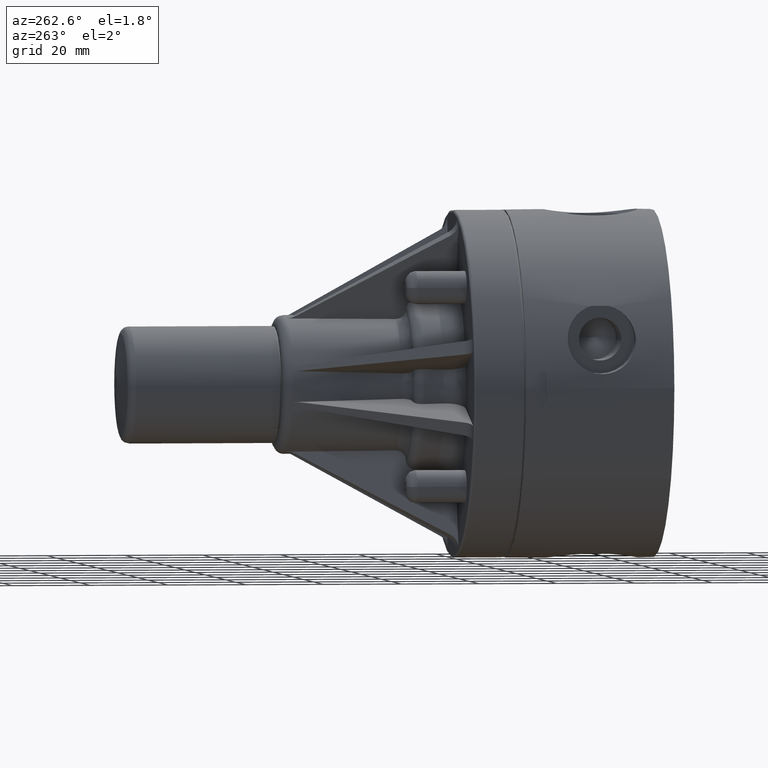
[diagram: clean part render]
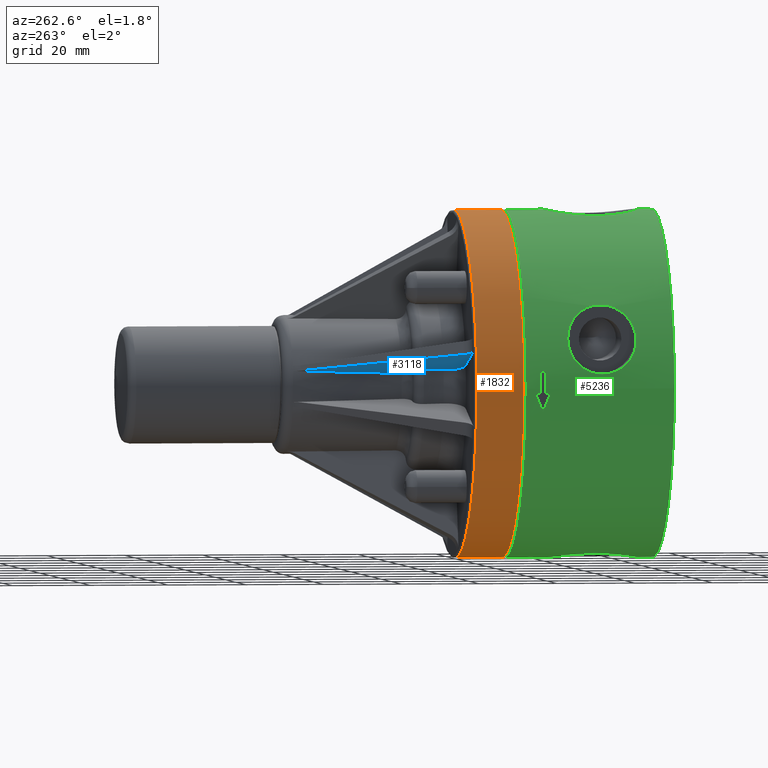
[diagram: same view with three faces highlighted in distinct colors, each labeled with its STEP entity id]
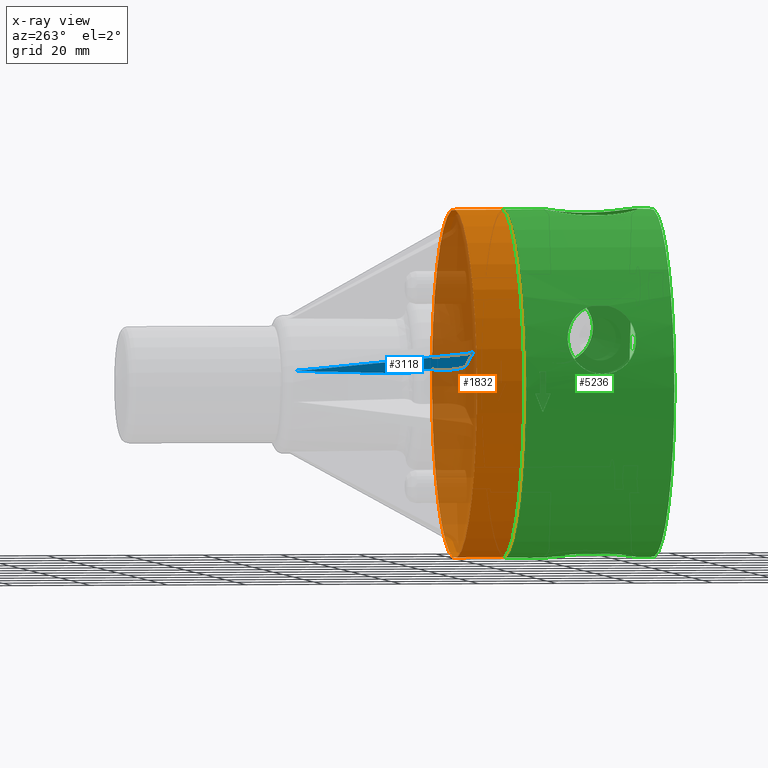
[diagram: x-ray of the same camera — body ghosted, the three highlighted faces saturated]
A machine part, auxiliary view with three faces highlighted in distinct colors.
The next image is the same camera in x-ray (body ghosted, the three faces saturated) — at least one of them is partly hidden behind the body in this view.
Their STEP definitions:

[orange] entity #1832 — the highlighted cylindrical surface (bore or boss wall) has radius 44.45 mm, axis along (-0, -1, -0).
#1801=CARTESIAN_POINT('',(1.237436867076458,2.000000000000001,-1.237436867076457));
#1802=VERTEX_POINT('',#1801);
#1803=CARTESIAN_POINT('',(3.023077E-016,2.000000000000001,6.530724E-017));
#1804=DIRECTION('',(-5.925011E-017,-1.0,5.925011E-017));
#1805=DIRECTION('',(0.707106781186548,-8.379231E-017,-0.707106781186547));
#1806=AXIS2_PLACEMENT_3D('',#1803,#1804,#1805);
#1807=CIRCLE('',#1806,1.749999999999999);
#1808=EDGE_CURVE('',#1802,#1802,#1807,.T.);
#1813=CARTESIAN_POINT('',(2.431429E-016,1.762500000000000,3.428630E-017));
#1814=DIRECTION('',(-2.491147E-016,-1.0,-1.306145E-016));
#1815=DIRECTION('',(0.707106781186548,-8.379231E-017,-0.707106781186547));
#1816=AXIS2_PLACEMENT_3D('',#1813,#1814,#1815);
#1817=CYLINDRICAL_SURFACE('',#1816,1.750000000000000);
#1818=ORIENTED_EDGE('',*,*,#1808,.T.);
#1819=EDGE_LOOP('',(#1818));
#1820=FACE_OUTER_BOUND('',#1819,.T.);
#1821=CARTESIAN_POINT('',(1.237436867076459,1.525000000000000,-1.237436867076458));
#1822=VERTEX_POINT('',#1821);
#1823=CARTESIAN_POINT('',(1.839782E-016,1.525000000000000,3.265362E-018));
#1824=DIRECTION('',(-5.925011E-017,-1.0,5.925011E-017));
#1825=DIRECTION('',(0.707106781186548,-8.379231E-017,-0.707106781186547));
#1826=AXIS2_PLACEMENT_3D('',#1823,#1824,#1825);
#1827=CIRCLE('',#1826,1.750000000000000);
#1828=EDGE_CURVE('',#1822,#1822,#1827,.T.);
#1829=ORIENTED_EDGE('',*,*,#1828,.F.);
#1830=EDGE_LOOP('',(#1829));
#1831=FACE_BOUND('',#1830,.T.);
#1832=ADVANCED_FACE('',(#1820,#1831),#1817,.T.);

[blue] entity #3118 — the highlighted planar face has unit normal (0.2587, -0.0262, 0.9656).
#1706=CARTESIAN_POINT('',(-0.688162459202930,2.625000000000000,0.128189039093735));
#1707=VERTEX_POINT('',#1706);
#1715=CARTESIAN_POINT('',(-0.682343417455200,3.716826314709518,0.156228872669417));
#1716=VERTEX_POINT('',#1715);
#1717=CARTESIAN_POINT('',(9.744670E-016,4.698192150791788,4.177302E-016));
#1718=DIRECTION('',(0.258730354279914,-0.026176948307873,0.965594827632935));
#1719=DIRECTION('',(-0.006775092764742,-0.999657324975557,-0.025284990424009));
#1720=AXIS2_PLACEMENT_3D('',#1717,#1718,#1719);
#1721=ELLIPSE('',#1720,26.741085009877217,0.700000000000000);
#1722=EDGE_CURVE('',#1707,#1716,#1721,.F.);
#2765=CARTESIAN_POINT('',(-0.785511766587941,2.525000000000000,0.151562741305011));
#2766=VERTEX_POINT('',#2765);
#2774=CARTESIAN_POINT('',(-0.785511766587943,2.525000000000000,0.151562741305012));
#2775=CARTESIAN_POINT('',(-0.773551489720113,2.525000000000000,0.148357994777024));
#2776=CARTESIAN_POINT('',(-0.759454529887153,2.527893656764100,0.144659171827576));
#2777=CARTESIAN_POINT('',(-0.737311355469626,2.537354889651929,0.138982416939470));
#2778=CARTESIAN_POINT('',(-0.725343441787701,2.545587286834391,0.135998801629016));
#2779=CARTESIAN_POINT('',(-0.708360636729013,2.563047231230307,0.131921605899580));
#2780=CARTESIAN_POINT('',(-0.700337038189732,2.575357319234435,0.130105411461569));
#2781=CARTESIAN_POINT('',(-0.691086109678908,2.598153870403676,0.128244639408892));
#2782=CARTESIAN_POINT('',(-0.688221763779661,2.612670159398392,0.127870671909977));
#2783=CARTESIAN_POINT('',(-0.688162459202930,2.625000000000000,0.128189039093735));
#2784=B_SPLINE_CURVE_WITH_KNOTS('',3,(#2774,#2775,#2776,#2777,#2778,#2779,#2780,#2781,#2782,#2783),.UNSPECIFIED.,.F.,.U.,(4,2,2,2,4),(0.376854774728702,0.471207060641792,0.565372503968186,0.659390030644902,0.753375817397422),.UNSPECIFIED.);
#2785=EDGE_CURVE('',#2766,#1707,#2784,.T.);
#2847=CARTESIAN_POINT('',(-0.882836101336888,2.425000000000000,0.174929752118621));
#2848=VERTEX_POINT('',#2847);
#2856=CARTESIAN_POINT('',(-0.882836101336888,2.425000000000000,0.174929752118621));
#2857=CARTESIAN_POINT('',(-0.882773194903622,2.437332582950760,0.175247228531984));
#2858=CARTESIAN_POINT('',(-0.879905528031789,2.451851543244707,0.174872443599163));
#2859=CARTESIAN_POINT('',(-0.870652870378623,2.474649469832383,0.173011245511319));
#2860=CARTESIAN_POINT('',(-0.862631384190242,2.486959886403183,0.171195625983358));
#2861=CARTESIAN_POINT('',(-0.845655331111155,2.504417600930554,0.167120178990423));
#2862=CARTESIAN_POINT('',(-0.833694307081619,2.512648294680131,0.164138363577275));
#2863=CARTESIAN_POINT('',(-0.811560618327808,2.522107735331144,0.158464101778169));
#2864=CARTESIAN_POINT('',(-0.797468156378784,2.525000000000000,0.154766446293859));
#2865=CARTESIAN_POINT('',(-0.785511766587941,2.525000000000000,0.151562741305011));
#2866=B_SPLINE_CURVE_WITH_KNOTS('',3,(#2856,#2857,#2858,#2859,#2860,#2861,#2862,#2863,#2864,#2865),.UNSPECIFIED.,.F.,.U.,(4,2,2,2,4),(0.0,0.094006637274788,0.188018182703629,0.282140015038897,0.376461636561581),.UNSPECIFIED.);
#2867=EDGE_CURVE('',#2848,#2766,#2866,.T.);
#2879=CARTESIAN_POINT('',(-0.883841446146807,2.225000000000000,0.169777201276021));
#2880=VERTEX_POINT('',#2879);
#2888=CARTESIAN_POINT('',(9.744670E-016,4.698192150791788,4.177302E-016));
#2889=DIRECTION('',(0.258730354279914,-0.026176948307873,0.965594827632935));
#2890=DIRECTION('',(-0.006775092764742,-0.999657324975557,-0.025284990424009));
#2891=AXIS2_PLACEMENT_3D('',#2888,#2889,#2890);
#2892=ELLIPSE('',#2891,34.381395012699251,0.899999999999999);
#2893=EDGE_CURVE('',#2880,#2848,#2892,.F.);
#2923=CARTESIAN_POINT('',(-1.078482179354140,2.025000000000000,0.216509096380594));
#2924=VERTEX_POINT('',#2923);
#2932=CARTESIAN_POINT('',(-1.078482179354141,2.025000000000001,0.216509096380594));
#2933=CARTESIAN_POINT('',(-1.066535612349205,2.025000000000001,0.213308023399297));
#2934=CARTESIAN_POINT('',(-1.053479837701843,2.026217885510781,0.209842755589141));
#2935=CARTESIAN_POINT('',(-1.027890422406275,2.031471903867086,0.203128527081714));
#2936=CARTESIAN_POINT('',(-1.015356804658082,2.035508160370530,0.199879575872809));
#2937=CARTESIAN_POINT('',(-0.993233611524414,2.044957053876606,0.194207840437122));
#2938=CARTESIAN_POINT('',(-0.981604253164173,2.051236633620061,0.191262000533208));
#2939=CARTESIAN_POINT('',(-0.959870348228600,2.066183871431072,0.185843632805237));
#2940=CARTESIAN_POINT('',(-0.949765909907673,2.074851699085820,0.183371138585310));
#2941=CARTESIAN_POINT('',(-0.932779151839400,2.092303274375321,0.179292656766511));
#2942=CARTESIAN_POINT('',(-0.924331850848877,2.102693896922299,0.177310895541278));
#2943=CARTESIAN_POINT('',(-0.909738933819802,2.125073180475888,0.174007429995611));
#2944=CARTESIAN_POINT('',(-0.903593424070046,2.137061915289674,0.172685756156060));
#2945=CARTESIAN_POINT('',(-0.894331708342628,2.159869939347136,0.170822404703517));
#2946=CARTESIAN_POINT('',(-0.890362276371969,2.172789140109283,0.170109033763847));
#2947=CARTESIAN_POINT('',(-0.885147738261018,2.199185125918653,0.169427388711545));
#2948=CARTESIAN_POINT('',(-0.883902551677975,2.212661894506163,0.169459092598124));
#2949=CARTESIAN_POINT('',(-0.883841446146807,2.225000000000000,0.169777201276021));
#2950=B_SPLINE_CURVE_WITH_KNOTS('',3,(#2932,#2933,#2934,#2935,#2936,#2937,#2938,#2939,#2940,#2941,#2942,#2943,#2944,#2945,#2946,#2947,#2948,#2949),.UNSPECIFIED.,.F.,.U.,(4,2,2,2,2,2,2,2,4),(0.753448376052435,0.847692507537499,0.941936639022563,1.036029227545029,1.130121816067495,1.224189454701717,1.318257093335938,1.412305853021050,1.506354612706161),.UNSPECIFIED.);
#2951=EDGE_CURVE('',#2924,#2880,#2950,.T.);
#2973=CARTESIAN_POINT('',(-1.536881267281476,2.102278556963050,0.341431757273111));
#2974=VERTEX_POINT('',#2973);
#2981=CARTESIAN_POINT('',(-1.664127680645380,2.025000000000001,0.373432335502502));
#2982=VERTEX_POINT('',#2981);
#2983=CARTESIAN_POINT('',(-1.663111068363030,2.175000000000001,0.377226384191831));
#2984=DIRECTION('',(-0.258730354279914,0.026176948307873,-0.965594827632935));
#2985=DIRECTION('',(-0.006775092764864,-0.999657324975557,-0.025284990423976));
#2986=AXIS2_PLACEMENT_3D('',#2983,#2984,#2985);
#2987=ELLIPSE('',#2986,0.150051418873630,0.150000000000000);
#2988=EDGE_CURVE('',#2974,#2982,#2987,.T.);
#3013=CARTESIAN_POINT('',(-0.701026602313352,3.643880267457619,0.159257474361929));
#3014=VERTEX_POINT('',#3013);
#3022=CARTESIAN_POINT('',(-0.701026602313352,3.643880267457619,0.159257474361929));
#3023=DIRECTION('',(-0.474093470997400,-0.874390413136918,0.103328535128913));
#3024=VECTOR('',#3023,1.763058797687406);
#3025=LINE('',#3022,#3024);
#3026=EDGE_CURVE('',#3014,#2974,#3025,.T.);
#3052=CARTESIAN_POINT('',(-0.701026602313352,3.643880267457619,0.159257474361929));
#3053=CARTESIAN_POINT('',(-0.695000985830096,3.654993563903390,0.157944192989052));
#3054=CARTESIAN_POINT('',(-0.690356489269741,3.666843569171222,0.157020953510496));
#3055=CARTESIAN_POINT('',(-0.684051562241607,3.691453470614590,0.155998719486963));
#3056=CARTESIAN_POINT('',(-0.682417754832492,3.704115211044678,0.155904197600086));
#3057=CARTESIAN_POINT('',(-0.682343417455200,3.716826314709518,0.156228872669417));
#3058=B_SPLINE_CURVE_WITH_KNOTS('',3,(#3052,#3053,#3054,#3055,#3056,#3057),.UNSPECIFIED.,.F.,.U.,(4,2,4),(-0.193739459944150,-0.096891857130675,0.0),.UNSPECIFIED.);
#3059=EDGE_CURVE('',#1716,#3014,#3058,.F.);
#3097=CARTESIAN_POINT('',(1.195440544694282,2.503713207108849,-0.379808908483760));
#3098=DIRECTION('',(0.258730354279914,-0.026176948307873,0.965594827632935));
#3099=DIRECTION('',(0.965925826289068,-2.082739E-016,-0.258819045102521));
#3100=AXIS2_PLACEMENT_3D('',#3097,#3098,#3099);
#3101=PLANE('',#3100);
#3102=CARTESIAN_POINT('',(-1.664127680645380,2.025000000000001,0.373432335502502));
#3103=DIRECTION('',(0.965925826289068,0.0,-0.258819045102521));
#3104=VECTOR('',#3103,0.606304837651144);
#3105=LINE('',#3102,#3104);
#3106=EDGE_CURVE('',#2982,#2924,#3105,.T.);
#3107=ORIENTED_EDGE('',*,*,#3106,.F.);
#3108=ORIENTED_EDGE('',*,*,#2988,.F.);
#3109=ORIENTED_EDGE('',*,*,#3026,.F.);
#3110=ORIENTED_EDGE('',*,*,#3059,.F.);
#3111=ORIENTED_EDGE('',*,*,#1722,.F.);
#3112=ORIENTED_EDGE('',*,*,#2785,.F.);
#3113=ORIENTED_EDGE('',*,*,#2867,.F.);
#3114=ORIENTED_EDGE('',*,*,#2893,.F.);
#3115=ORIENTED_EDGE('',*,*,#2951,.F.);
#3116=EDGE_LOOP('',(#3107,#3108,#3109,#3110,#3111,#3112,#3113,#3114,#3115));
#3117=FACE_OUTER_BOUND('',#3116,.T.);
#3118=ADVANCED_FACE('',(#3117),#3101,.F.);

[green] entity #5236 — the highlighted cylindrical surface (bore or boss wall) has radius 44.45 mm, axis along (0, 1, 0).
#79=CARTESIAN_POINT('',(-1.750000000000000,0.0,2.143132E-016));
#80=VERTEX_POINT('',#79);
#81=CARTESIAN_POINT('',(0.0,0.0,0.0));
#82=DIRECTION('',(0.0,-1.0,0.0));
#83=DIRECTION('',(1.0,0.0,0.0));
#84=AXIS2_PLACEMENT_3D('',#81,#82,#83);
#85=CIRCLE('',#84,1.750000000000000);
#86=EDGE_CURVE('',#80,#80,#85,.T.);
#4278=CARTESIAN_POINT('',(-1.750000000000000,1.500000000000000,2.143132E-016));
#4279=VERTEX_POINT('',#4278);
#4280=CARTESIAN_POINT('',(0.0,1.500000000000000,0.0));
#4281=DIRECTION('',(0.0,-1.0,0.0));
#4282=DIRECTION('',(1.0,0.0,0.0));
#4283=AXIS2_PLACEMENT_3D('',#4280,#4281,#4282);
#4284=CIRCLE('',#4283,1.750000000000000);
#4285=EDGE_CURVE('',#4279,#4279,#4284,.T.);
#4387=CARTESIAN_POINT('',(-1.749285568453591,1.255000000000002,-0.050000000000000));
#4388=VERTEX_POINT('',#4387);
#4389=CARTESIAN_POINT('',(-1.734678210996352,1.330000000000002,-0.231066017177982));
#4390=VERTEX_POINT('',#4389);
#4391=CARTESIAN_POINT('',(0.0,1.234289321881347,0.0));
#4392=DIRECTION('',(0.0,-0.923879532511286,-0.382683432365091));
#4393=DIRECTION('',(0.0,0.382683432365091,-0.923879532511286));
#4394=AXIS2_PLACEMENT_3D('',#4391,#4392,#4393);
#4395=ELLIPSE('',#4394,1.894186350511691,1.750000000000000);
#4396=EDGE_CURVE('',#4388,#4390,#4395,.T.);
#4419=CARTESIAN_POINT('',(-1.749285568453591,1.300000000000002,-0.050000000000000));
#4420=VERTEX_POINT('',#4419);
#4421=CARTESIAN_POINT('',(-1.749285568453591,1.300000000000002,-0.050000000000000));
#4422=DIRECTION('',(0.0,-1.0,0.0));
#4423=VECTOR('',#4422,0.045000000000000);
#4424=LINE('',#4421,#4423);
#4425=EDGE_CURVE('',#4420,#4388,#4424,.T.);
#4443=CARTESIAN_POINT('',(-1.741526916243329,1.300000000000002,0.172000000000000));
#4444=VERTEX_POINT('',#4443);
#4445=CARTESIAN_POINT('',(0.0,1.300000000000002,0.0));
#4446=DIRECTION('',(0.0,-1.0,0.0));
#4447=DIRECTION('',(1.0,0.0,0.0));
#4448=AXIS2_PLACEMENT_3D('',#4445,#4446,#4447);
#4449=CIRCLE('',#4448,1.750000000000000);
#4450=EDGE_CURVE('',#4444,#4420,#4449,.T.);
#4468=CARTESIAN_POINT('',(-1.741526916243329,1.360000000000001,0.172000000000000));
#4469=VERTEX_POINT('',#4468);
#4470=CARTESIAN_POINT('',(-1.741526916243329,1.360000000000001,0.172000000000000));
#4471=DIRECTION('',(0.0,-1.0,0.0));
#4472=VECTOR('',#4471,0.060000000000000);
#4473=LINE('',#4470,#4472);
#4474=EDGE_CURVE('',#4469,#4444,#4473,.T.);
#4492=CARTESIAN_POINT('',(-1.749285568453591,1.405000000000002,-0.050000000000000));
#4493=VERTEX_POINT('',#4492);
#4494=CARTESIAN_POINT('',(0.0,1.425710678118656,0.0));
#4495=DIRECTION('',(0.0,0.923879532511287,-0.382683432365089));
#4496=DIRECTION('',(0.0,-0.382683432365089,-0.923879532511287));
#4497=AXIS2_PLACEMENT_3D('',#4494,#4495,#4496);
#4498=ELLIPSE('',#4497,1.894186350511689,1.750000000000000);
#4499=EDGE_CURVE('',#4390,#4493,#4498,.T.);
#4517=CARTESIAN_POINT('',(-1.749285568453591,1.360000000000001,-0.050000000000000));
#4518=VERTEX_POINT('',#4517);
#4519=CARTESIAN_POINT('',(-1.749285568453591,1.405000000000002,-0.050000000000001));
#4520=DIRECTION('',(0.0,-1.0,0.0));
#4521=VECTOR('',#4520,0.045000000000000);
#4522=LINE('',#4519,#4521);
#4523=EDGE_CURVE('',#4493,#4518,#4522,.T.);
#4541=CARTESIAN_POINT('',(0.0,1.360000000000001,0.0));
#4542=DIRECTION('',(0.0,1.0,0.0));
#4543=DIRECTION('',(1.0,0.0,0.0));
#4544=AXIS2_PLACEMENT_3D('',#4541,#4542,#4543);
#4545=CIRCLE('',#4544,1.750000000000000);
#4546=EDGE_CURVE('',#4518,#4469,#4545,.T.);
#4627=CARTESIAN_POINT('',(1.734678210996352,1.330000000000002,-0.231066017177982));
#4628=VERTEX_POINT('',#4627);
#4629=CARTESIAN_POINT('',(1.749285568453591,1.255000000000002,-0.050000000000000));
#4630=VERTEX_POINT('',#4629);
#4631=CARTESIAN_POINT('',(0.0,1.234289321881347,0.0));
#4632=DIRECTION('',(0.0,-0.923879532511286,-0.382683432365091));
#4633=DIRECTION('',(0.0,0.382683432365091,-0.923879532511286));
#4634=AXIS2_PLACEMENT_3D('',#4631,#4632,#4633);
#4635=ELLIPSE('',#4634,1.894186350511691,1.750000000000000);
#4636=EDGE_CURVE('',#4628,#4630,#4635,.T.);
#4659=CARTESIAN_POINT('',(1.749285568453591,1.300000000000002,-0.050000000000000));
#4660=VERTEX_POINT('',#4659);
#4661=CARTESIAN_POINT('',(1.749285568453591,1.255000000000002,-0.050000000000000));
#4662=DIRECTION('',(0.0,1.0,0.0));
#4663=VECTOR('',#4662,0.045000000000000);
#4664=LINE('',#4661,#4663);
#4665=EDGE_CURVE('',#4630,#4660,#4664,.T.);
#4683=CARTESIAN_POINT('',(1.741526916243329,1.300000000000002,0.172000000000000));
#4684=VERTEX_POINT('',#4683);
#4685=CARTESIAN_POINT('',(0.0,1.300000000000002,0.0));
#4686=DIRECTION('',(0.0,-1.0,0.0));
#4687=DIRECTION('',(1.0,0.0,0.0));
#4688=AXIS2_PLACEMENT_3D('',#4685,#4686,#4687);
#4689=CIRCLE('',#4688,1.750000000000000);
#4690=EDGE_CURVE('',#4660,#4684,#4689,.T.);
#4708=CARTESIAN_POINT('',(1.741526916243329,1.360000000000001,0.172000000000000));
#4709=VERTEX_POINT('',#4708);
#4710=CARTESIAN_POINT('',(1.741526916243329,1.300000000000002,0.172000000000000));
#4711=DIRECTION('',(0.0,1.0,0.0));
#4712=VECTOR('',#4711,0.060000000000000);
#4713=LINE('',#4710,#4712);
#4714=EDGE_CURVE('',#4684,#4709,#4713,.T.);
#4732=CARTESIAN_POINT('',(1.749285568453591,1.405000000000002,-0.050000000000000));
#4733=VERTEX_POINT('',#4732);
#4734=CARTESIAN_POINT('',(0.0,1.425710678118656,0.0));
#4735=DIRECTION('',(0.0,0.923879532511287,-0.382683432365089));
#4736=DIRECTION('',(0.0,-0.382683432365089,-0.923879532511287));
#4737=AXIS2_PLACEMENT_3D('',#4734,#4735,#4736);
#4738=ELLIPSE('',#4737,1.894186350511689,1.750000000000000);
#4739=EDGE_CURVE('',#4733,#4628,#4738,.T.);
#4757=CARTESIAN_POINT('',(1.749285568453591,1.360000000000001,-0.050000000000000));
#4758=VERTEX_POINT('',#4757);
#4759=CARTESIAN_POINT('',(1.749285568453591,1.360000000000001,-0.050000000000001));
#4760=DIRECTION('',(0.0,1.0,0.0));
#4761=VECTOR('',#4760,0.045000000000000);
#4762=LINE('',#4759,#4761);
#4763=EDGE_CURVE('',#4758,#4733,#4762,.T.);
#4781=CARTESIAN_POINT('',(0.0,1.360000000000001,0.0));
#4782=DIRECTION('',(0.0,1.0,0.0));
#4783=DIRECTION('',(1.0,0.0,0.0));
#4784=AXIS2_PLACEMENT_3D('',#4781,#4782,#4783);
#4785=CIRCLE('',#4784,1.750000000000000);
#4786=EDGE_CURVE('',#4709,#4758,#4785,.T.);
#4799=CARTESIAN_POINT('',(-1.543000000000000,0.638984620515735,0.825621584020187));
#4800=VERTEX_POINT('',#4799);
#4801=CARTESIAN_POINT('',(-1.543000000000000,0.811015379484262,0.825621584020187));
#4802=VERTEX_POINT('',#4801);
#4803=CARTESIAN_POINT('',(-1.543000000000000,0.638984620515735,0.825621584020186));
#4804=CARTESIAN_POINT('',(-1.545127099535553,0.623519598529525,0.821646258463195));
#4805=CARTESIAN_POINT('',(-1.547818213528049,0.608292497826026,0.816581620112613));
#4806=CARTESIAN_POINT('',(-1.559982268242120,0.551708553301458,0.793304893680700));
#4807=CARTESIAN_POINT('',(-1.572959089669472,0.513944821873299,0.767669435659679));
#4808=CARTESIAN_POINT('',(-1.600798927866218,0.452431629349184,0.707886319585574));
#4809=CARTESIAN_POINT('',(-1.617793395195960,0.425129727400690,0.668855780265256));
#4810=CARTESIAN_POINT('',(-1.650752166415034,0.388651981014636,0.582787104775473));
#4811=CARTESIAN_POINT('',(-1.666638945440722,0.379499999999997,0.535709191443562));
#4812=CARTESIAN_POINT('',(-1.692168014482463,0.379499999999997,0.448374401696246));
#4813=CARTESIAN_POINT('',(-1.703696346561692,0.387896428434075,0.402280033871227));
#4814=CARTESIAN_POINT('',(-1.721654621395625,0.423107824318244,0.316726743783809));
#4815=CARTESIAN_POINT('',(-1.728177504805645,0.449947210125573,0.277297409929949));
#4816=CARTESIAN_POINT('',(-1.736925113749759,0.511814635750706,0.215718250692674));
#4817=CARTESIAN_POINT('',(-1.739825440610874,0.550547435841414,0.189258011669270));
#4818=CARTESIAN_POINT('',(-1.743286913585509,0.635483045646838,0.154148930666710));
#4819=CARTESIAN_POINT('',(-1.743940867690187,0.681682011000869,0.145499999999999));
#4820=CARTESIAN_POINT('',(-1.743940867690187,0.768317988999126,0.145499999999999));
#4821=CARTESIAN_POINT('',(-1.743286913585509,0.814516954353157,0.154148930666710));
#4822=CARTESIAN_POINT('',(-1.739825440610874,0.899452564158581,0.189258011669270));
#4823=CARTESIAN_POINT('',(-1.736925113749759,0.938185364249289,0.215718250692674));
#4824=CARTESIAN_POINT('',(-1.728177504805645,1.000052789874422,0.277297409929949));
#4825=CARTESIAN_POINT('',(-1.721654621395625,1.026892175681751,0.316726743783809));
#4826=CARTESIAN_POINT('',(-1.703696346561693,1.062103571565920,0.402280033871227));
#4827=CARTESIAN_POINT('',(-1.692168014482463,1.070499999999998,0.448374401696246));
#4828=CARTESIAN_POINT('',(-1.666638945440722,1.070499999999999,0.535709191443562));
#4829=CARTESIAN_POINT('',(-1.650752166415034,1.061348018985359,0.582787104775472));
#4830=CARTESIAN_POINT('',(-1.617793395195960,1.024870272599306,0.668855780265256));
#4831=CARTESIAN_POINT('',(-1.600798927866218,0.997568370650812,0.707886319585574));
#4832=CARTESIAN_POINT('',(-1.572959089669472,0.936055178126697,0.767669435659679));
#4833=CARTESIAN_POINT('',(-1.559982268242120,0.898291446698538,0.793304893680700));
#4834=CARTESIAN_POINT('',(-1.547818213528049,0.841707502173971,0.816581620112614));
#4835=CARTESIAN_POINT('',(-1.545127099535553,0.826480401470471,0.821646258463195));
#4836=CARTESIAN_POINT('',(-1.543000000000000,0.811015379484261,0.825621584020186));
#4837=B_SPLINE_CURVE_WITH_KNOTS('',3,(#4803,#4804,#4805,#4806,#4807,#4808,#4809,#4810,#4811,#4812,#4813,#4814,#4815,#4816,#4817,#4818,#4819,#4820,#4821,#4822,#4823,#4824,#4825,#4826,#4827,#4828,#4829,#4830,#4831,#4832,#4833,#4834,#4835,#4836),.UNSPECIFIED.,.F.,.U.,(4,2,2,2,2,2,2,2,2,2,2,2,2,2,2,2,4),(0.215290122119907,0.332252588084675,0.664505176169351,1.019446073176361,1.374386970183371,1.712786471692885,2.051185973202399,2.381269049375758,2.711352125549118,3.041435201722477,3.371518277895837,3.709917779405351,4.048317280914865,4.403258177921875,4.758199074928885,5.090451663013560,5.207414128978328),.UNSPECIFIED.);
#4838=EDGE_CURVE('',#4800,#4802,#4837,.T.);
#4892=CARTESIAN_POINT('',(-1.542999999999997,0.811015379484262,0.825621584020191));
#4893=DIRECTION('',(0.0,-1.0,0.0));
#4894=VECTOR('',#4893,0.172030758968527);
#4895=LINE('',#4892,#4894);
#4896=EDGE_CURVE('',#4802,#4800,#4895,.T.);
#4910=CARTESIAN_POINT('',(1.543000000000001,0.638984620515768,0.825621584020184));
#4911=VERTEX_POINT('',#4910);
#4912=CARTESIAN_POINT('',(1.543000000000001,0.811015379484247,0.825621584020184));
#4913=VERTEX_POINT('',#4912);
#4914=CARTESIAN_POINT('',(1.543000000000003,0.638984620515768,0.825621584020180));
#4915=DIRECTION('',(0.0,1.0,0.0));
#4916=VECTOR('',#4915,0.172030758968479);
#4917=LINE('',#4914,#4916);
#4918=EDGE_CURVE('',#4911,#4913,#4917,.T.);
#4946=CARTESIAN_POINT('',(1.543000000000002,0.811015379484247,0.825621584020183));
#4947=CARTESIAN_POINT('',(1.545127099535555,0.826480401470464,0.821646258463191));
#4948=CARTESIAN_POINT('',(1.547818213528051,0.841707502173971,0.816581620112608));
#4949=CARTESIAN_POINT('',(1.559982268242124,0.898291446698544,0.793304893680692));
#4950=CARTESIAN_POINT('',(1.572959089669475,0.936055178126702,0.767669435659672));
#4951=CARTESIAN_POINT('',(1.600798927866220,0.997568370650815,0.707886319585568));
#4952=CARTESIAN_POINT('',(1.617793395195962,1.024870272599308,0.668855780265252));
#4953=CARTESIAN_POINT('',(1.650752166415035,1.061348018985361,0.582787104775470));
#4954=CARTESIAN_POINT('',(1.666638945440722,1.070500000000000,0.535709191443561));
#4955=CARTESIAN_POINT('',(1.692168014482463,1.070500000000000,0.448374401696247));
#4956=CARTESIAN_POINT('',(1.703696346561692,1.062103571565922,0.402280033871229));
#4957=CARTESIAN_POINT('',(1.721654621395623,1.026892175681754,0.316726743783814));
#4958=CARTESIAN_POINT('',(1.728177504805645,1.000052789874426,0.277297409929955));
#4959=CARTESIAN_POINT('',(1.736925113749758,0.938185364249295,0.215718250692681));
#4960=CARTESIAN_POINT('',(1.739825440610873,0.899452564158588,0.189258011669279));
#4961=CARTESIAN_POINT('',(1.743286913585507,0.814516954353166,0.154148930666719));
#4962=CARTESIAN_POINT('',(1.743940867690186,0.768317988999136,0.145500000000008));
#4963=CARTESIAN_POINT('',(1.743940867690186,0.681682011000881,0.145500000000008));
#4964=CARTESIAN_POINT('',(1.743286913585507,0.635483045646852,0.154148930666719));
#4965=CARTESIAN_POINT('',(1.739825440610873,0.550547435841429,0.189258011669278));
#4966=CARTESIAN_POINT('',(1.736925113749758,0.511814635750723,0.215718250692681));
#4967=CARTESIAN_POINT('',(1.728177504805645,0.449947210125592,0.277297409929955));
#4968=CARTESIAN_POINT('',(1.721654621395623,0.423107824318263,0.316726743783814));
#4969=CARTESIAN_POINT('',(1.703696346561692,0.387896428434095,0.402280033871229));
#4970=CARTESIAN_POINT('',(1.692168014482463,0.379500000000017,0.448374401696247));
#4971=CARTESIAN_POINT('',(1.666638945440722,0.379500000000017,0.535709191443561));
#4972=CARTESIAN_POINT('',(1.650752166415035,0.388651981014656,0.582787104775470));
#4973=CARTESIAN_POINT('',(1.617793395195962,0.425129727400708,0.668855780265252));
#4974=CARTESIAN_POINT('',(1.600798927866220,0.452431629349201,0.707886319585568));
#4975=CARTESIAN_POINT('',(1.572959089669475,0.513944821873314,0.767669435659672));
#4976=CARTESIAN_POINT('',(1.559982268242124,0.551708553301473,0.793304893680692));
#4977=CARTESIAN_POINT('',(1.547818213528051,0.608292497826045,0.816581620112608));
#4978=CARTESIAN_POINT('',(1.545127099535555,0.623519598529552,0.821646258463191));
#4979=CARTESIAN_POINT('',(1.543000000000001,0.638984620515769,0.825621584020183));
#4980=B_SPLINE_CURVE_WITH_KNOTS('',3,(#4946,#4947,#4948,#4949,#4950,#4951,#4952,#4953,#4954,#4955,#4956,#4957,#4958,#4959,#4960,#4961,#4962,#4963,#4964,#4965,#4966,#4967,#4968,#4969,#4970,#4971,#4972,#4973,#4974,#4975,#4976,#4977,#4978,#4979),.UNSPECIFIED.,.F.,.U.,(4,2,2,2,2,2,2,2,2,2,2,2,2,2,2,2,4),(0.215290122119847,0.332252588084667,0.664505176169334,1.019446073176335,1.374386970183336,1.712786471692841,2.051185973202346,2.381269049375697,2.711352125549049,3.041435201722400,3.371518277895751,3.709917779405256,4.048317280914762,4.403258177921762,4.758199074928763,5.090451663013429,5.207414128978249),.UNSPECIFIED.);
#4981=EDGE_CURVE('',#4913,#4911,#4980,.T.);
#5021=CARTESIAN_POINT('',(0.0,0.150000000000000,-1.750000000000000));
#5022=VERTEX_POINT('',#5021);
#5023=CARTESIAN_POINT('',(0.0,1.100000000000000,-1.750000000000000));
#5024=VERTEX_POINT('',#5023);
#5025=CARTESIAN_POINT('',(-2.775558E-017,0.150000000000000,-1.750000000000000));
#5026=CARTESIAN_POINT('',(0.057436733261418,0.150000000000000,-1.750000000000000));
#5027=CARTESIAN_POINT('',(0.117484229034522,0.164057127446695,-1.746888788623161));
#5028=CARTESIAN_POINT('',(0.225094031461412,0.217904224199189,-1.736305167422875));
#5029=CARTESIAN_POINT('',(0.272713942001708,0.257615050042053,-1.729016811958428));
#5030=CARTESIAN_POINT('',(0.344623736328903,0.344196907920755,-1.716109490100689));
#5031=CARTESIAN_POINT('',(0.374479023137850,0.396628101767814,-1.709582056192117));
#5032=CARTESIAN_POINT('',(0.413710384503209,0.509099803699692,-1.700514343865069));
#5033=CARTESIAN_POINT('',(0.423086512265737,0.569149330645564,-1.698086512265737));
#5034=CARTESIAN_POINT('',(0.423086512265737,0.680850669354436,-1.698086512265737));
#5035=CARTESIAN_POINT('',(0.413710384503209,0.740900196300309,-1.700514343865069));
#5036=CARTESIAN_POINT('',(0.374479023137850,0.853371898232186,-1.709582056192117));
#5037=CARTESIAN_POINT('',(0.344623736328903,0.905803092079245,-1.716109490100689));
#5038=CARTESIAN_POINT('',(0.272713942001708,0.992384949957947,-1.729016811958428));
#5039=CARTESIAN_POINT('',(0.225094031461412,1.032095775800811,-1.736305167422875));
#5040=CARTESIAN_POINT('',(0.117484229034522,1.085942872553305,-1.746888788623161));
#5041=CARTESIAN_POINT('',(0.057436733261418,1.100000000000000,-1.750000000000000));
#5042=CARTESIAN_POINT('',(8.326673E-017,1.100000000000000,-1.750000000000000));
#5043=B_SPLINE_CURVE_WITH_KNOTS('',3,(#5025,#5026,#5027,#5028,#5029,#5030,#5031,#5032,#5033,#5034,#5035,#5036,#5037,#5038,#5039,#5040,#5041,#5042),.UNSPECIFIED.,.F.,.U.,(4,2,2,2,2,2,2,2,4),(1.726500015865610,2.164167923317613,2.601835830769616,3.027417931250418,3.453000031731221,3.878582132212023,4.304164232692826,4.741832140144829,5.179500047596831),.UNSPECIFIED.);
#5044=EDGE_CURVE('',#5022,#5024,#5043,.T.);
#5046=CARTESIAN_POINT('',(1.249001E-016,1.100000000000000,-1.750000000000000));
#5047=CARTESIAN_POINT('',(-0.057436733261417,1.100000000000000,-1.750000000000000));
#5048=CARTESIAN_POINT('',(-0.117484229034521,1.085942872553305,-1.746888788623162));
#5049=CARTESIAN_POINT('',(-0.225094031461412,1.032095775800811,-1.736305167422876));
#5050=CARTESIAN_POINT('',(-0.272713942001708,0.992384949957947,-1.729016811958428));
#5051=CARTESIAN_POINT('',(-0.344623736328903,0.905803092079245,-1.716109490100689));
#5052=CARTESIAN_POINT('',(-0.374479023137850,0.853371898232186,-1.709582056192117));
#5053=CARTESIAN_POINT('',(-0.413710384503208,0.740900196300308,-1.700514343865069));
#5054=CARTESIAN_POINT('',(-0.423086512265737,0.680850669354436,-1.698086512265737));
#5055=CARTESIAN_POINT('',(-0.423086512265737,0.625000000000000,-1.698086512265737));
#5056=CARTESIAN_POINT('',(-0.423086512265737,0.569149330645564,-1.698086512265737));
#5057=CARTESIAN_POINT('',(-0.413710384503209,0.509099803699692,-1.700514343865069));
#5058=CARTESIAN_POINT('',(-0.374479023137850,0.396628101767814,-1.709582056192117));
#5059=CARTESIAN_POINT('',(-0.344623736328903,0.344196907920755,-1.716109490100689));
#5060=CARTESIAN_POINT('',(-0.272713942001708,0.257615050042053,-1.729016811958428));
#5061=CARTESIAN_POINT('',(-0.225094031461412,0.217904224199189,-1.736305167422875));
#5062=CARTESIAN_POINT('',(-0.117484229034522,0.164057127446695,-1.746888788623161));
#5063=CARTESIAN_POINT('',(-0.057436733261418,0.150000000000000,-1.750000000000000));
#5064=CARTESIAN_POINT('',(-8.326673E-017,0.150000000000000,-1.750000000000000));
#5065=B_SPLINE_CURVE_WITH_KNOTS('',3,(#5046,#5047,#5048,#5049,#5050,#5051,#5052,#5053,#5054,#5055,#5056,#5057,#5058,#5059,#5060,#5061,#5062,#5063,#5064),.UNSPECIFIED.,.F.,.U.,(4,2,2,2,3,2,2,2,4),(5.179500047596831,5.617167955048833,6.054835862500836,6.480417962981639,6.906000063462442,7.331582163943245,7.757164264424048,8.194832171876049,8.632500079328052),.UNSPECIFIED.);
#5066=EDGE_CURVE('',#5024,#5022,#5065,.T.);
#5136=CARTESIAN_POINT('',(0.0,1.100000000000000,1.750000000000000));
#5137=VERTEX_POINT('',#5136);
#5138=CARTESIAN_POINT('',(0.0,0.150000000000000,1.750000000000000));
#5139=VERTEX_POINT('',#5138);
#5140=CARTESIAN_POINT('',(1.387779E-017,1.100000000000000,1.750000000000000));
#5141=CARTESIAN_POINT('',(0.057436733261418,1.100000000000000,1.750000000000000));
#5142=CARTESIAN_POINT('',(0.117484229034522,1.085942872553305,1.746888788623161));
#5143=CARTESIAN_POINT('',(0.225094031461413,1.032095775800811,1.736305167422875));
#5144=CARTESIAN_POINT('',(0.272713942001708,0.992384949957947,1.729016811958428));
#5145=CARTESIAN_POINT('',(0.344623736328904,0.905803092079245,1.716109490100689));
#5146=CARTESIAN_POINT('',(0.374479023137850,0.853371898232186,1.709582056192117));
#5147=CARTESIAN_POINT('',(0.413710384503209,0.740900196300308,1.700514343865069));
#5148=CARTESIAN_POINT('',(0.423086512265737,0.680850669354436,1.698086512265737));
#5149=CARTESIAN_POINT('',(0.423086512265737,0.570842594146345,1.698086512265737));
#5150=CARTESIAN_POINT('',(0.414266295796470,0.512531746348319,1.700365973313825));
#5151=CARTESIAN_POINT('',(0.377249737483085,0.402889131244128,1.708959820602307));
#5152=CARTESIAN_POINT('',(0.349050335767472,0.351550551610727,1.715173818664397));
#5153=CARTESIAN_POINT('',(0.279025179865775,0.263368951882389,1.728012363216448));
#5154=CARTESIAN_POINT('',(0.230730643791760,0.221626564084941,1.735601721492298));
#5155=CARTESIAN_POINT('',(0.148309667963863,0.179084036737930,1.743922803756379));
#5156=CARTESIAN_POINT('',(0.119197442236667,0.168116751142153,1.746188761131651));
#5157=CARTESIAN_POINT('',(0.059837229703675,0.153572056162217,1.749229180437457));
#5158=CARTESIAN_POINT('',(0.029587744852968,0.150000000000000,1.750000000000000));
#5159=CARTESIAN_POINT('',(5.551115E-017,0.150000000000000,1.750000000000000));
#5160=B_SPLINE_CURVE_WITH_KNOTS('',3,(#5140,#5141,#5142,#5143,#5144,#5145,#5146,#5147,#5148,#5149,#5150,#5151,#5152,#5153,#5154,#5155,#5156,#5157,#5158,#5159),.UNSPECIFIED.,.F.,.U.,(4,2,2,2,2,2,2,2,2,4),(1.726500015865611,2.164167923317613,2.601835830769616,3.027417931250419,3.453000031731222,3.865679464336072,4.278358896940922,4.729276128500148,4.954734744279760,5.180193360059373),.UNSPECIFIED.);
#5161=EDGE_CURVE('',#5137,#5139,#5160,.T.);
#5163=CARTESIAN_POINT('',(4.163336E-017,0.150000000000000,1.750000000000000));
#5164=CARTESIAN_POINT('',(-0.057436733261418,0.150000000000000,1.750000000000000));
#5165=CARTESIAN_POINT('',(-0.117484229034522,0.164057127446695,1.746888788623161));
#5166=CARTESIAN_POINT('',(-0.225094031461413,0.217904224199189,1.736305167422875));
#5167=CARTESIAN_POINT('',(-0.272713942001708,0.257615050042053,1.729016811958428));
#5168=CARTESIAN_POINT('',(-0.344623736328904,0.344196907920755,1.716109490100689));
#5169=CARTESIAN_POINT('',(-0.374479023137850,0.396628101767814,1.709582056192117));
#5170=CARTESIAN_POINT('',(-0.413710384503209,0.509099803699692,1.700514343865069));
#5171=CARTESIAN_POINT('',(-0.423086512265737,0.569149330645564,1.698086512265737));
#5172=CARTESIAN_POINT('',(-0.423086512265737,0.625000000000000,1.698086512265737));
#5173=CARTESIAN_POINT('',(-0.423086512265737,0.680850669354436,1.698086512265737));
#5174=CARTESIAN_POINT('',(-0.413710384503209,0.740900196300309,1.700514343865069));
#5175=CARTESIAN_POINT('',(-0.374479023137850,0.853371898232186,1.709582056192117));
#5176=CARTESIAN_POINT('',(-0.344623736328903,0.905803092079245,1.716109490100689));
#5177=CARTESIAN_POINT('',(-0.272713942001708,0.992384949957947,1.729016811958428));
#5178=CARTESIAN_POINT('',(-0.225094031461413,1.032095775800811,1.736305167422875));
#5179=CARTESIAN_POINT('',(-0.117484229034522,1.085942872553305,1.746888788623161));
#5180=CARTESIAN_POINT('',(-0.057436733261418,1.100000000000000,1.750000000000000));
#5181=CARTESIAN_POINT('',(0.0,1.100000000000000,1.750000000000000));
#5182=B_SPLINE_CURVE_WITH_KNOTS('',3,(#5163,#5164,#5165,#5166,#5167,#5168,#5169,#5170,#5171,#5172,#5173,#5174,#5175,#5176,#5177,#5178,#5179,#5180,#5181),.UNSPECIFIED.,.F.,.U.,(4,2,2,2,3,2,2,2,4),(5.180193360059373,5.617861267511375,6.055529174963378,6.481111275444182,6.906693375924984,7.332275476405787,7.757857576886590,8.195525484338592,8.633193391790595),.UNSPECIFIED.);
#5183=EDGE_CURVE('',#5139,#5137,#5182,.T.);
#5191=CARTESIAN_POINT('',(0.0,0.0,0.0));
#5192=DIRECTION('',(0.0,1.0,0.0));
#5193=DIRECTION('',(1.0,0.0,0.0));
#5194=AXIS2_PLACEMENT_3D('',#5191,#5192,#5193);
#5195=CYLINDRICAL_SURFACE('',#5194,1.750000000000000);
#5196=ORIENTED_EDGE('',*,*,#4285,.T.);
#5197=EDGE_LOOP('',(#5196));
#5198=FACE_OUTER_BOUND('',#5197,.T.);
#5199=ORIENTED_EDGE('',*,*,#4396,.T.);
#5200=ORIENTED_EDGE('',*,*,#4499,.T.);
#5201=ORIENTED_EDGE('',*,*,#4523,.T.);
#5202=ORIENTED_EDGE('',*,*,#4546,.T.);
#5203=ORIENTED_EDGE('',*,*,#4474,.T.);
#5204=ORIENTED_EDGE('',*,*,#4450,.T.);
#5205=ORIENTED_EDGE('',*,*,#4425,.T.);
#5206=EDGE_LOOP('',(#5199,#5200,#5201,#5202,#5203,#5204,#5205));
#5207=FACE_BOUND('',#5206,.T.);
#5208=ORIENTED_EDGE('',*,*,#4636,.T.);
#5209=ORIENTED_EDGE('',*,*,#4665,.T.);
#5210=ORIENTED_EDGE('',*,*,#4690,.T.);
#5211=ORIENTED_EDGE('',*,*,#4714,.T.);
#5212=ORIENTED_EDGE('',*,*,#4786,.T.);
#5213=ORIENTED_EDGE('',*,*,#4763,.T.);
#5214=ORIENTED_EDGE('',*,*,#4739,.T.);
#5215=EDGE_LOOP('',(#5208,#5209,#5210,#5211,#5212,#5213,#5214));
#5216=FACE_BOUND('',#5215,.T.);
#5217=ORIENTED_EDGE('',*,*,#4896,.T.);
#5218=ORIENTED_EDGE('',*,*,#4838,.T.);
#5219=EDGE_LOOP('',(#5217,#5218));
#5220=FACE_BOUND('',#5219,.T.);
#5221=ORIENTED_EDGE('',*,*,#4981,.T.);
#5222=ORIENTED_EDGE('',*,*,#4918,.T.);
#5223=EDGE_LOOP('',(#5221,#5222));
#5224=FACE_BOUND('',#5223,.T.);
#5225=ORIENTED_EDGE('',*,*,#5066,.T.);
#5226=ORIENTED_EDGE('',*,*,#5044,.T.);
#5227=EDGE_LOOP('',(#5225,#5226));
#5228=FACE_BOUND('',#5227,.T.);
#5229=ORIENTED_EDGE('',*,*,#5161,.T.);
#5230=ORIENTED_EDGE('',*,*,#5183,.T.);
#5231=EDGE_LOOP('',(#5229,#5230));
#5232=FACE_BOUND('',#5231,.T.);
#5233=ORIENTED_EDGE('',*,*,#86,.F.);
#5234=EDGE_LOOP('',(#5233));
#5235=FACE_BOUND('',#5234,.T.);
#5236=ADVANCED_FACE('',(#5198,#5207,#5216,#5220,#5224,#5228,#5232,#5235),#5195,.T.);